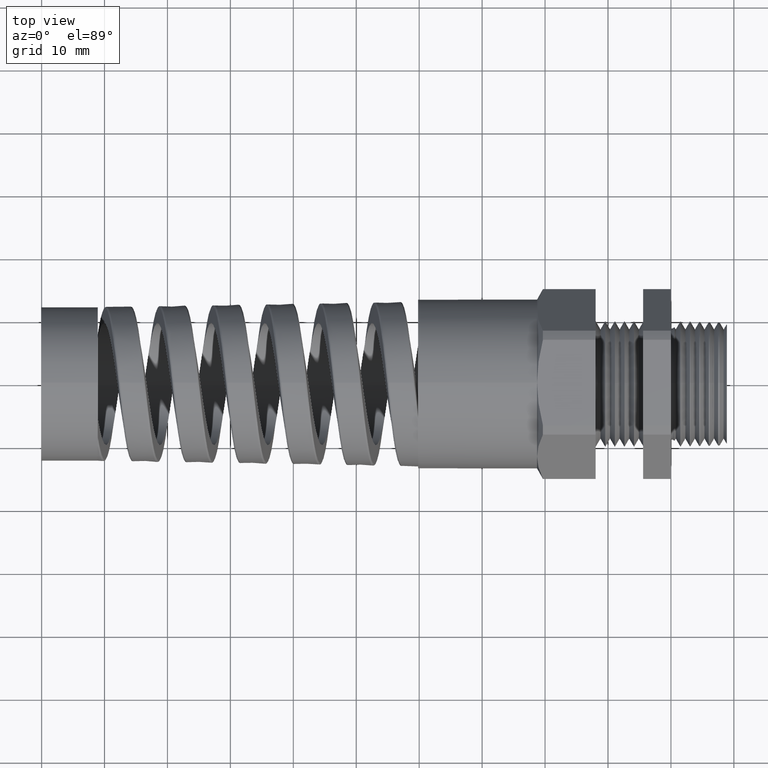
[diagram: clean part render]
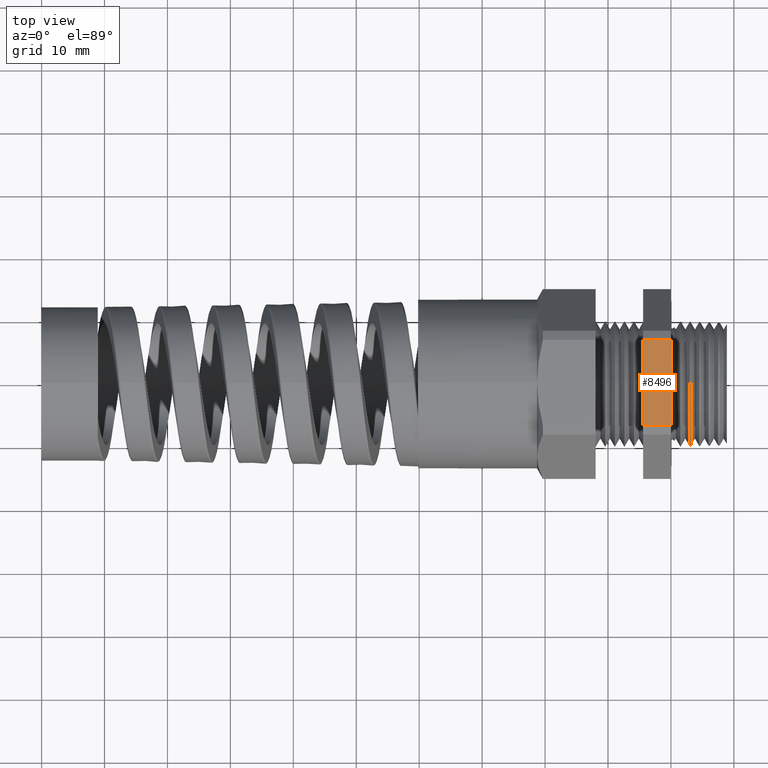
[diagram: same view with one face highlighted and labeled with its STEP entity id]
A machine part, top view. The second image highlights one B-rep face of the part: STEP entity #8496.
In plain terms, the highlighted planar face has unit normal (0, 0, 1).
Its self-contained STEP definition (entity closure, byte-faithful):
#660 = EDGE_CURVE ( 'NONE', #2442, #2439, #3304, .T. ) ;
#709 = DIRECTION ( 'NONE',  ( 1.000000000000000000, 0.0000000000000000000, 0.0000000000000000000 ) ) ;
#710 = DIRECTION ( 'NONE',  ( 0.0000000000000000000, 0.0000000000000000000, 1.000000000000000000 ) ) ;
#711 = CARTESIAN_POINT ( 'NONE',  ( -2.533243884661831900, 0.2673218285138724300, 0.5299999999999999200 ) ) ;
#712 = AXIS2_PLACEMENT_3D ( 'NONE', #711, #710, #709 ) ;
#713 = FACE_OUTER_BOUND ( 'NONE', #8584, .T. ) ;
#718 = PLANE ( 'NONE',  #712 ) ;
#2073 = EDGE_CURVE ( 'NONE', #2830, #2832, #3670, .T. ) ;
#2439 = VERTEX_POINT ( 'NONE', #6549 ) ;
#2440 = EDGE_CURVE ( 'NONE', #2439, #2832, #6548, .T. ) ;
#2442 = VERTEX_POINT ( 'NONE', #6544 ) ;
#2447 = EDGE_CURVE ( 'NONE', #2442, #2830, #6533, .T. ) ;
#2830 = VERTEX_POINT ( 'NONE', #9872 ) ;
#2832 = VERTEX_POINT ( 'NONE', #9871 ) ;
#3301 = DIRECTION ( 'NONE',  ( 0.0000000000000000000, -1.000000000000000000, 0.0000000000000000000 ) ) ;
#3302 = VECTOR ( 'NONE', #3301, 39.37007874015748100 ) ;
#3303 = CARTESIAN_POINT ( 'NONE',  ( -0.1741293532338308300, 0.3950000000000000200, 0.5299999999999999200 ) ) ;
#3304 = LINE ( 'NONE', #3303, #3302 ) ;
#3667 = DIRECTION ( 'NONE',  ( 0.0000000000000000000, -1.000000000000000000, 0.0000000000000000000 ) ) ;
#3668 = VECTOR ( 'NONE', #3667, 39.37007874015748100 ) ;
#3669 = CARTESIAN_POINT ( 'NONE',  ( 0.0000000000000000000, 0.2673218285138724300, 0.5299999999999999200 ) ) ;
#3670 = LINE ( 'NONE', #3669, #3668 ) ;
#6530 = DIRECTION ( 'NONE',  ( 1.000000000000000000, 0.0000000000000000000, 0.0000000000000000000 ) ) ;
#6531 = VECTOR ( 'NONE', #6530, 39.37007874015748100 ) ;
#6532 = CARTESIAN_POINT ( 'NONE',  ( -2.533243884661831900, 0.2673218285138723200, 0.5300000000000000300 ) ) ;
#6533 = LINE ( 'NONE', #6532, #6531 ) ;
#6544 = CARTESIAN_POINT ( 'NONE',  ( -0.1741293532338308300, 0.2673218285138724300, 0.5299999999999999200 ) ) ;
#6545 = DIRECTION ( 'NONE',  ( 1.000000000000000000, 0.0000000000000000000, 0.0000000000000000000 ) ) ;
#6546 = VECTOR ( 'NONE', #6545, 39.37007874015748100 ) ;
#6547 = CARTESIAN_POINT ( 'NONE',  ( -2.533243884661831900, -0.2673218285138724300, 0.5299999999999999200 ) ) ;
#6548 = LINE ( 'NONE', #6547, #6546 ) ;
#6549 = CARTESIAN_POINT ( 'NONE',  ( -0.1741293532338308300, -0.2673218285138724300, 0.5299999999999999200 ) ) ;
#8184 = ORIENTED_EDGE ( 'NONE', *, *, #2447, .F. ) ;
#8334 = ORIENTED_EDGE ( 'NONE', *, *, #2073, .F. ) ;
#8492 = ORIENTED_EDGE ( 'NONE', *, *, #2440, .T. ) ;
#8493 = ORIENTED_EDGE ( 'NONE', *, *, #660, .T. ) ;
#8496 = ADVANCED_FACE ( 'NONE', ( #713 ), #718, .T. ) ;
#8584 = EDGE_LOOP ( 'NONE', ( #8493, #8492, #8334, #8184 ) ) ;
#9871 = CARTESIAN_POINT ( 'NONE',  ( 0.0000000000000000000, -0.2673218285138724300, 0.5299999999999999200 ) ) ;
#9872 = CARTESIAN_POINT ( 'NONE',  ( 0.0000000000000000000, 0.2673218285138723200, 0.5300000000000000300 ) ) ;